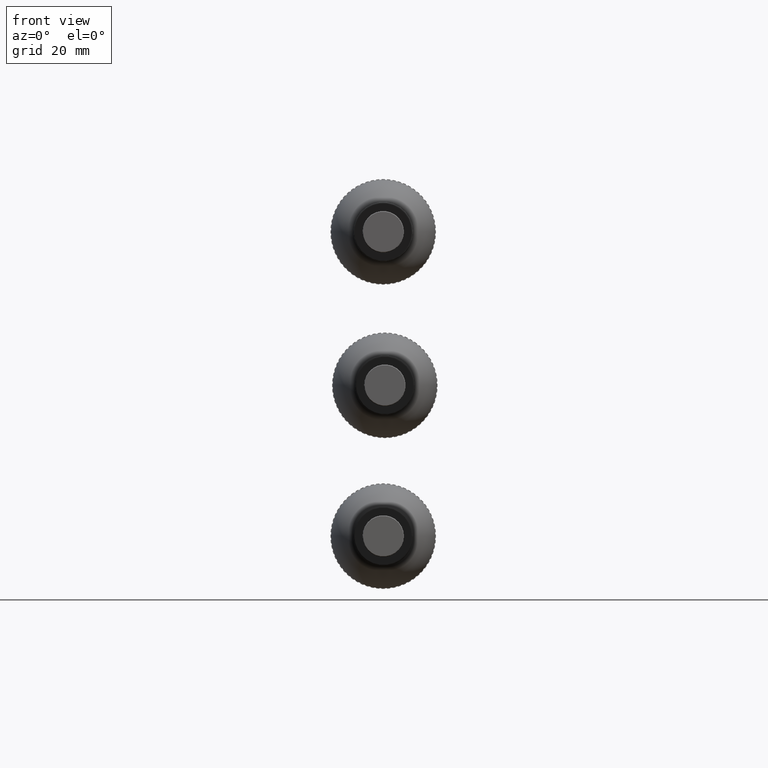
[diagram: clean part render]
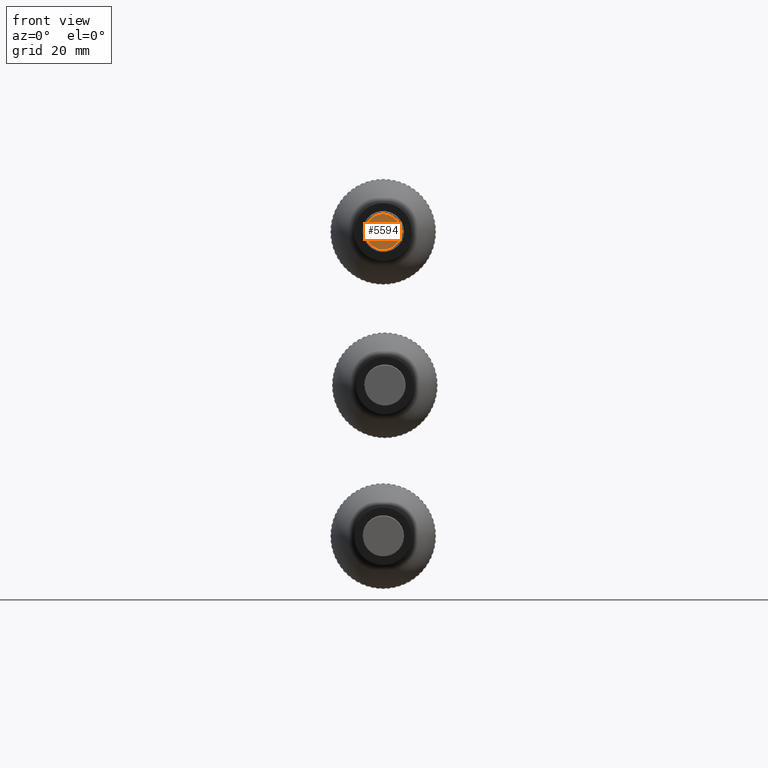
[diagram: same view with one face highlighted and labeled with its STEP entity id]
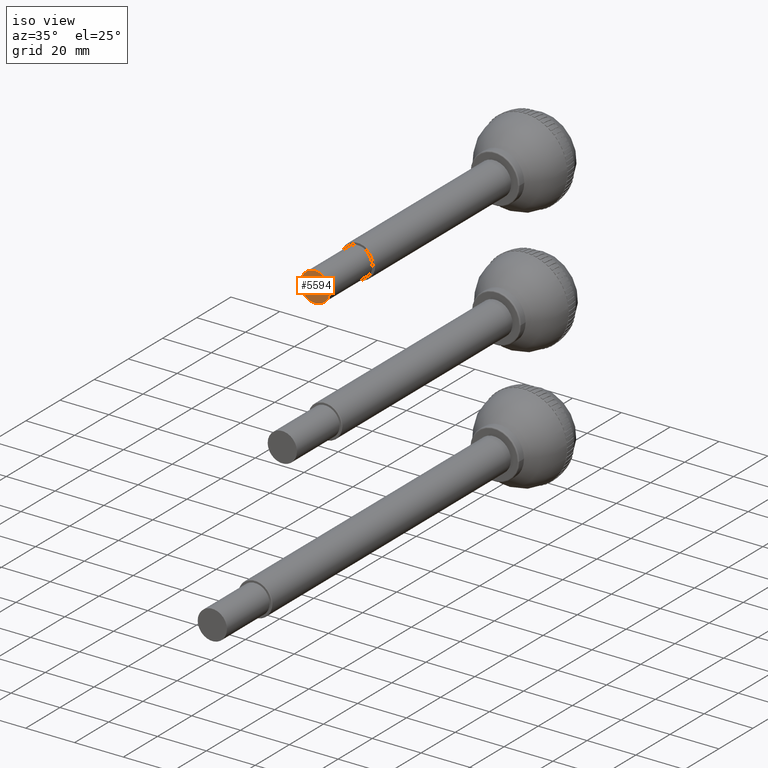
[diagram: same view with one face highlighted and labeled with its STEP entity id]
A machine part, front view. The second image highlights one B-rep face of the part: STEP entity #5594.
A second angle (iso view) of the same face is appended — the face is thin or edge-on in the first view.
In plain terms, the highlighted planar face has unit normal (0, -1, 0).
Its self-contained STEP definition (entity closure, byte-faithful):
#850=PLANE('',#6424);
#1267=FACE_OUTER_BOUND('',#1669,.T.);
#1669=EDGE_LOOP('',(#4934));
#2198=CIRCLE('',#6425,6.);
#2707=VERTEX_POINT('',#9973);
#3456=EDGE_CURVE('',#2707,#2707,#2198,.T.);
#4934=ORIENTED_EDGE('',*,*,#3456,.F.);
#5594=ADVANCED_FACE('',(#1267),#850,.T.);
#6424=AXIS2_PLACEMENT_3D('',#9972,#8327,#8328);
#6425=AXIS2_PLACEMENT_3D('',#9974,#8329,#8330);
#8327=DIRECTION('center_axis',(-1.,0.,0.));
#8328=DIRECTION('ref_axis',(0.,0.,1.));
#8329=DIRECTION('center_axis',(1.,0.,0.));
#8330=DIRECTION('ref_axis',(0.,0.,-1.));
#9972=CARTESIAN_POINT('Origin',(0.,6.,0.));
#9973=CARTESIAN_POINT('',(0.,6.,0.));
#9974=CARTESIAN_POINT('Origin',(0.,0.,0.));